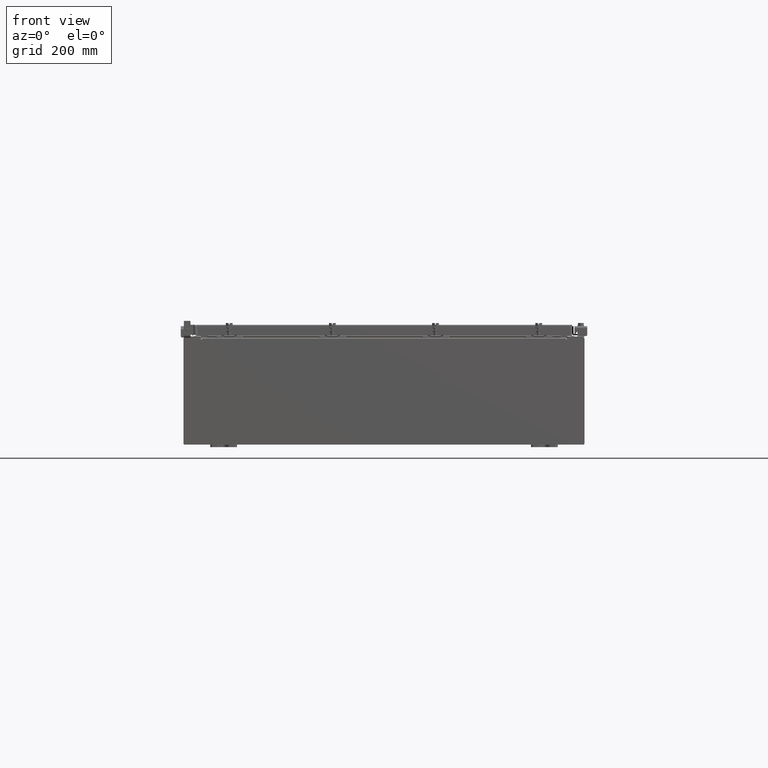
[diagram: clean part render]
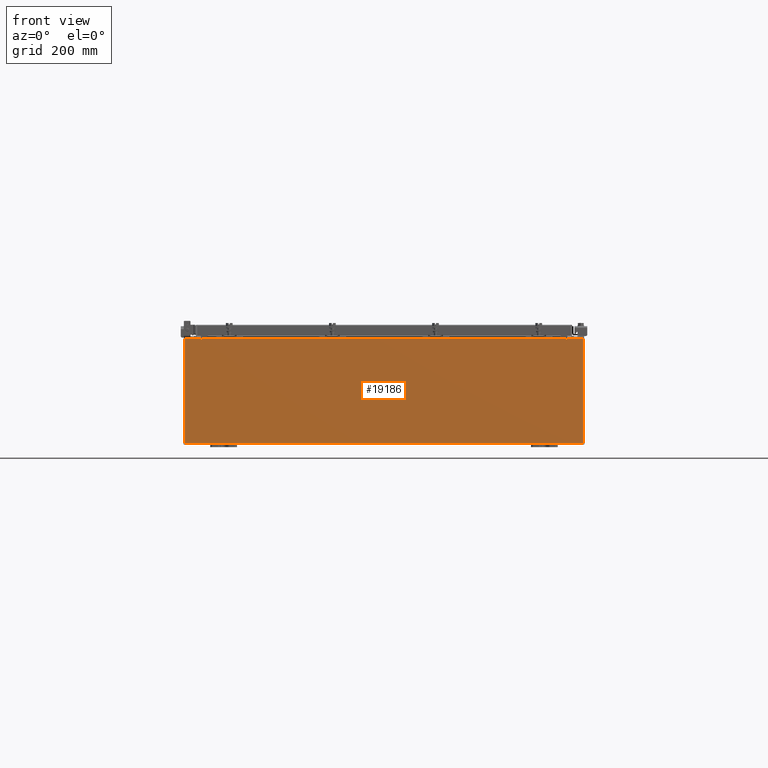
[diagram: same view with one face highlighted and labeled with its STEP entity id]
A machine part, front view. The second image highlights one B-rep face of the part: STEP entity #19186.
In plain terms, the highlighted planar face has unit normal (-0, 1, -0).
Its self-contained STEP definition (entity closure, byte-faithful):
#45 = CARTESIAN_POINT ( 'NONE',  ( 13.67455000000000400, 0.0000000000000000000, 3.925299999999999600 ) ) ;
#236 = PLANE ( 'NONE',  #2077 ) ;
#365 = VERTEX_POINT ( 'NONE', #9844 ) ;
#478 = ORIENTED_EDGE ( 'NONE', *, *, #10719, .T. ) ;
#1102 = DIRECTION ( 'NONE',  ( -1.000000000000000000, -0.0000000000000000000, -0.0000000000000000000 ) ) ;
#1292 = CIRCLE ( 'NONE', #12978, 0.01867499999999949400 ) ;
#1843 = VERTEX_POINT ( 'NONE', #10487 ) ;
#1891 = VERTEX_POINT ( 'NONE', #4641 ) ;
#2042 = LINE ( 'NONE', #24573, #12185 ) ;
#2077 = AXIS2_PLACEMENT_3D ( 'NONE', #4005, #2157, #15479 ) ;
#2082 = LINE ( 'NONE', #20034, #21672 ) ;
#2157 = DIRECTION ( 'NONE',  ( 0.0000000000000000000, -1.000000000000000000, 0.0000000000000000000 ) ) ;
#2184 = CARTESIAN_POINT ( 'NONE',  ( -14.92529999999999800, 0.0000000000000000000, 3.925299999999999600 ) ) ;
#2440 = CARTESIAN_POINT ( 'NONE',  ( -14.92529999999999800, 0.0000000000000000000, 3.925299999999999600 ) ) ;
#2645 = ORIENTED_EDGE ( 'NONE', *, *, #12287, .F. ) ;
#2902 = CARTESIAN_POINT ( 'NONE',  ( -13.65587499999999600, 0.0000000000000000000, 3.874949999999999700 ) ) ;
#3014 = VECTOR ( 'NONE', #5383, 39.37007874015748100 ) ;
#3169 = VERTEX_POINT ( 'NONE', #16562 ) ;
#3322 = VERTEX_POINT ( 'NONE', #10882 ) ;
#3640 = VECTOR ( 'NONE', #10780, 39.37007874015748100 ) ;
#4005 = CARTESIAN_POINT ( 'NONE',  ( 0.0000000000000000000, 0.0000000000000000000, 0.0000000000000000000 ) ) ;
#4225 = ORIENTED_EDGE ( 'NONE', *, *, #20883, .F. ) ;
#4436 = DIRECTION ( 'NONE',  ( 1.000000000000000000, 0.0000000000000000000, 0.0000000000000000000 ) ) ;
#4641 = CARTESIAN_POINT ( 'NONE',  ( -13.63719999999999600, -0.0000000000000000000, 3.874949999999999700 ) ) ;
#4839 = DIRECTION ( 'NONE',  ( 0.0000000000000000000, 0.0000000000000000000, -1.000000000000000000 ) ) ;
#5295 = CARTESIAN_POINT ( 'NONE',  ( -13.63719999999999800, 1.024442997624098700E-016, 3.912299999999999700 ) ) ;
#5383 = DIRECTION ( 'NONE',  ( 1.000000000000000000, 0.0000000000000000000, 0.0000000000000000000 ) ) ;
#5456 = ORIENTED_EDGE ( 'NONE', *, *, #7255, .T. ) ;
#5573 = DIRECTION ( 'NONE',  ( 0.0000000000000000000, 0.0000000000000000000, -1.000000000000000000 ) ) ;
#6637 = CARTESIAN_POINT ( 'NONE',  ( 14.92530000000000200, 0.0000000000000000000, 3.925299999999999600 ) ) ;
#7224 = CARTESIAN_POINT ( 'NONE',  ( 13.65587500000000200, 0.0000000000000000000, 3.874949999999999700 ) ) ;
#7255 = EDGE_CURVE ( 'NONE', #14213, #365, #8741, .T. ) ;
#7403 = CARTESIAN_POINT ( 'NONE',  ( 13.63720000000000400, 0.0000000000000000000, 0.0000000000000000000 ) ) ;
#7696 = VERTEX_POINT ( 'NONE', #19671 ) ;
#7815 = EDGE_CURVE ( 'NONE', #3322, #12933, #22605, .T. ) ;
#8071 = ORIENTED_EDGE ( 'NONE', *, *, #11959, .F. ) ;
#8620 = LINE ( 'NONE', #17521, #18083 ) ;
#8741 = LINE ( 'NONE', #12186, #3640 ) ;
#8979 = ORIENTED_EDGE ( 'NONE', *, *, #23333, .F. ) ;
#9156 = DIRECTION ( 'NONE',  ( 0.0000000000000000000, 0.0000000000000000000, -1.000000000000000000 ) ) ;
#9263 = VECTOR ( 'NONE', #19225, 39.37007874015748100 ) ;
#9448 = DIRECTION ( 'NONE',  ( 0.0000000000000000000, 0.0000000000000000000, -1.000000000000000000 ) ) ;
#9816 = CARTESIAN_POINT ( 'NONE',  ( -14.92529999999999800, 0.0000000000000000000, -3.925299999999999600 ) ) ;
#9844 = CARTESIAN_POINT ( 'NONE',  ( -14.92529999999999800, 0.0000000000000000000, 3.925299999999999600 ) ) ;
#9934 = DIRECTION ( 'NONE',  ( -4.340572780400004900E-014, 0.0000000000000000000, -1.000000000000000000 ) ) ;
#10020 = VECTOR ( 'NONE', #13050, 39.37007874015748100 ) ;
#10214 = VERTEX_POINT ( 'NONE', #16924 ) ;
#10391 = ORIENTED_EDGE ( 'NONE', *, *, #19539, .F. ) ;
#10487 = CARTESIAN_POINT ( 'NONE',  ( 14.92530000000000200, 0.0000000000000000000, -3.925299999999999600 ) ) ;
#10719 = EDGE_CURVE ( 'NONE', #1843, #14213, #2082, .T. ) ;
#10780 = DIRECTION ( 'NONE',  ( -0.0000000000000000000, -0.0000000000000000000, 1.000000000000000000 ) ) ;
#10882 = CARTESIAN_POINT ( 'NONE',  ( -13.63719999999999600, 1.024442997624098700E-016, 3.912299999999999700 ) ) ;
#11555 = CIRCLE ( 'NONE', #16412, 0.01867499999999949400 ) ;
#11959 = EDGE_CURVE ( 'NONE', #16068, #10214, #8620, .T. ) ;
#12185 = VECTOR ( 'NONE', #9448, 39.37007874015748100 ) ;
#12186 = CARTESIAN_POINT ( 'NONE',  ( -14.92529999999999800, 0.0000000000000000000, 3.925299999999999600 ) ) ;
#12287 = EDGE_CURVE ( 'NONE', #10214, #3169, #11555, .T. ) ;
#12929 = ORIENTED_EDGE ( 'NONE', *, *, #16942, .T. ) ;
#12933 = VERTEX_POINT ( 'NONE', #16602 ) ;
#12978 = AXIS2_PLACEMENT_3D ( 'NONE', #2902, #16245, #4839 ) ;
#13050 = DIRECTION ( 'NONE',  ( 0.0000000000000000000, 0.0000000000000000000, 1.000000000000000000 ) ) ;
#13913 = VECTOR ( 'NONE', #19303, 39.37007874015748100 ) ;
#14213 = VERTEX_POINT ( 'NONE', #9816 ) ;
#15479 = DIRECTION ( 'NONE',  ( 0.0000000000000000000, -0.0000000000000000000, -1.000000000000000000 ) ) ;
#15788 = LINE ( 'NONE', #2440, #20193 ) ;
#16063 = EDGE_LOOP ( 'NONE', ( #8979, #4225, #19918, #22348, #10391, #2645, #8071, #21613, #12929, #478, #5456, #24052 ) ) ;
#16068 = VERTEX_POINT ( 'NONE', #45 ) ;
#16245 = DIRECTION ( 'NONE',  ( -0.0000000000000000000, 1.000000000000000000, -0.0000000000000000000 ) ) ;
#16257 = EDGE_CURVE ( 'NONE', #16068, #17987, #15788, .T. ) ;
#16412 = AXIS2_PLACEMENT_3D ( 'NONE', #7224, #20452, #9156 ) ;
#16562 = CARTESIAN_POINT ( 'NONE',  ( 13.63720000000000400, 0.0000000000000000000, 3.874949999999999700 ) ) ;
#16594 = CARTESIAN_POINT ( 'NONE',  ( -13.67454999999999500, 0.0000000000000000000, 3.874949999999999700 ) ) ;
#16602 = CARTESIAN_POINT ( 'NONE',  ( 13.63720000000000400, 0.0000000000000000000, 3.912299999999999700 ) ) ;
#16924 = CARTESIAN_POINT ( 'NONE',  ( 13.67455000000000200, 0.0000000000000000000, 3.874949999999999700 ) ) ;
#16942 = EDGE_CURVE ( 'NONE', #17987, #1843, #2042, .T. ) ;
#17140 = FACE_OUTER_BOUND ( 'NONE', #16063, .T. ) ;
#17521 = CARTESIAN_POINT ( 'NONE',  ( 13.67454999999983300, -0.0000000000000000000, -5.935537951421816200E-013 ) ) ;
#17987 = VERTEX_POINT ( 'NONE', #6637 ) ;
#18083 = VECTOR ( 'NONE', #9934, 39.37007874015748100 ) ;
#18444 = EDGE_CURVE ( 'NONE', #365, #7696, #18931, .T. ) ;
#18860 = CARTESIAN_POINT ( 'NONE',  ( -13.63719999999999600, -0.0000000000000000000, 0.0000000000000000000 ) ) ;
#18907 = VECTOR ( 'NONE', #5573, 39.37007874015748100 ) ;
#18931 = LINE ( 'NONE', #2184, #13913 ) ;
#19058 = EDGE_CURVE ( 'NONE', #3322, #1891, #23924, .T. ) ;
#19186 = ADVANCED_FACE ( 'NONE', ( #17140 ), #236, .F. ) ;
#19225 = DIRECTION ( 'NONE',  ( 0.0000000000000000000, 0.0000000000000000000, 1.000000000000000000 ) ) ;
#19303 = DIRECTION ( 'NONE',  ( 1.000000000000000000, 0.0000000000000000000, 0.0000000000000000000 ) ) ;
#19539 = EDGE_CURVE ( 'NONE', #3169, #12933, #20651, .T. ) ;
#19671 = CARTESIAN_POINT ( 'NONE',  ( -13.67454999999999500, 0.0000000000000000000, 3.925299999999999600 ) ) ;
#19918 = ORIENTED_EDGE ( 'NONE', *, *, #19058, .F. ) ;
#20034 = CARTESIAN_POINT ( 'NONE',  ( -14.92529999999999800, 0.0000000000000000000, -3.925299999999999600 ) ) ;
#20193 = VECTOR ( 'NONE', #4436, 39.37007874015748100 ) ;
#20452 = DIRECTION ( 'NONE',  ( -0.0000000000000000000, 1.000000000000000000, -0.0000000000000000000 ) ) ;
#20651 = LINE ( 'NONE', #7403, #10020 ) ;
#20883 = EDGE_CURVE ( 'NONE', #1891, #22499, #1292, .T. ) ;
#21111 = CARTESIAN_POINT ( 'NONE',  ( -13.67454999999999500, -0.0000000000000000000, 0.0000000000000000000 ) ) ;
#21613 = ORIENTED_EDGE ( 'NONE', *, *, #16257, .T. ) ;
#21672 = VECTOR ( 'NONE', #1102, 39.37007874015748100 ) ;
#22348 = ORIENTED_EDGE ( 'NONE', *, *, #7815, .T. ) ;
#22499 = VERTEX_POINT ( 'NONE', #16594 ) ;
#22605 = LINE ( 'NONE', #5295, #3014 ) ;
#23333 = EDGE_CURVE ( 'NONE', #22499, #7696, #24359, .T. ) ;
#23924 = LINE ( 'NONE', #18860, #18907 ) ;
#24052 = ORIENTED_EDGE ( 'NONE', *, *, #18444, .T. ) ;
#24359 = LINE ( 'NONE', #21111, #9263 ) ;
#24573 = CARTESIAN_POINT ( 'NONE',  ( 14.92530000000000200, 0.0000000000000000000, 3.925299999999999600 ) ) ;